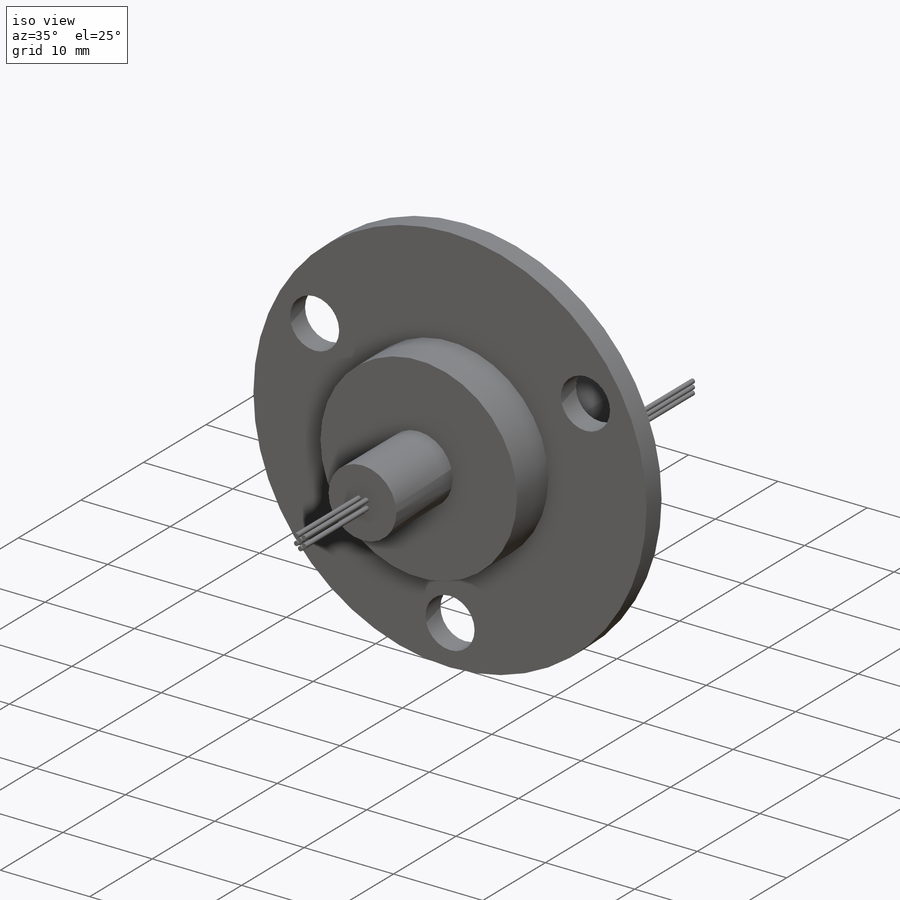
[diagram: iso view]
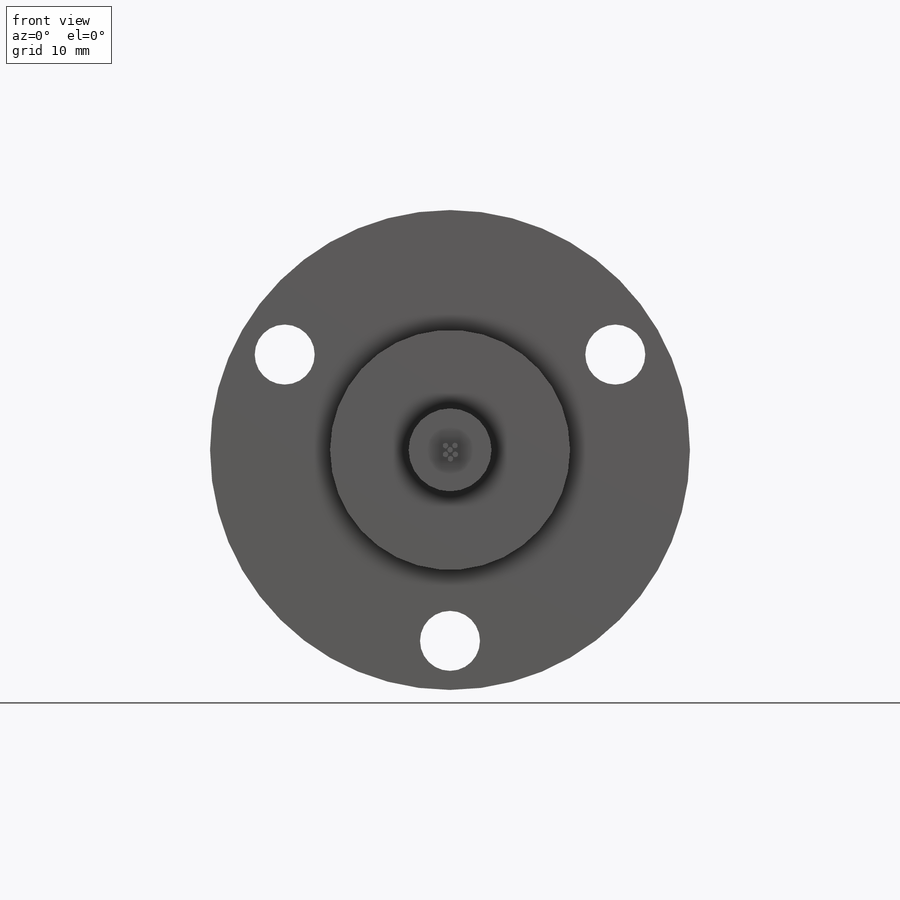
[diagram: front view]
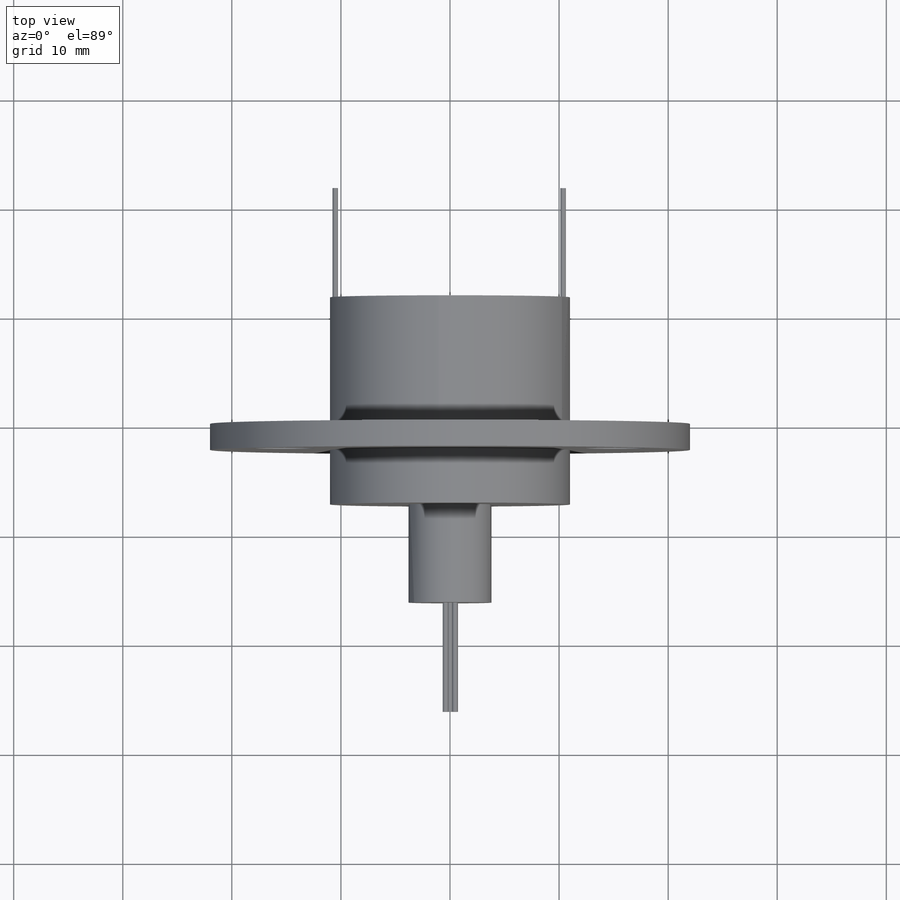
[diagram: top view]
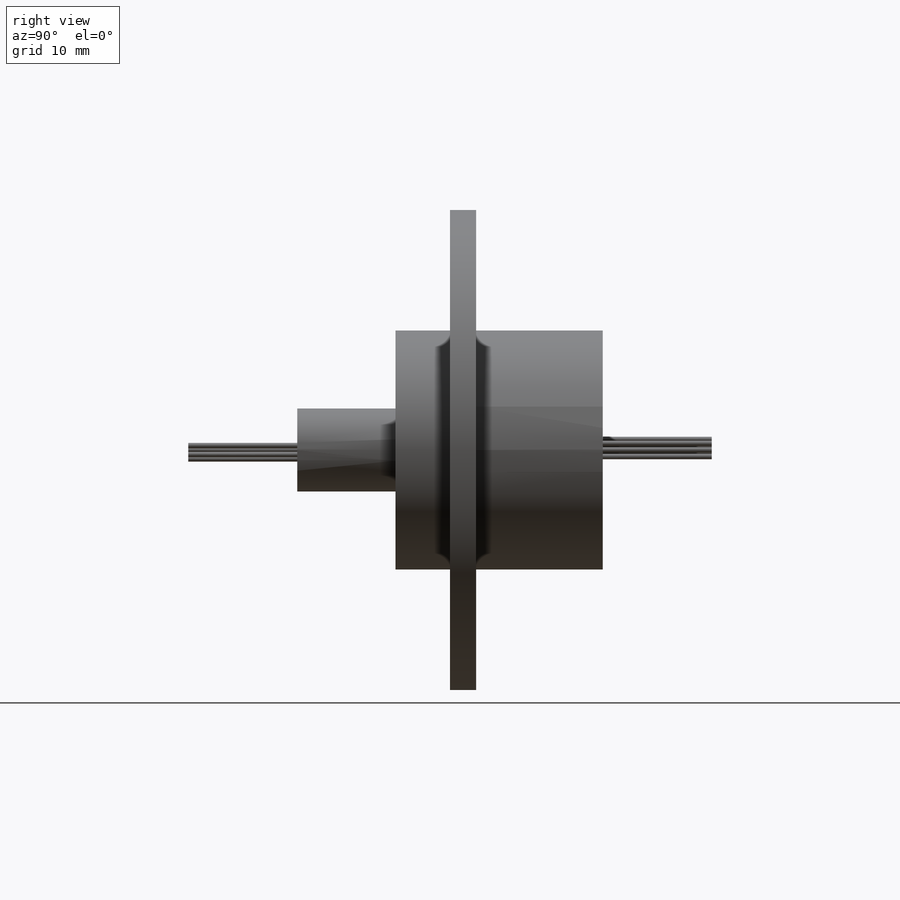
[diagram: right view]
SOLIDWORKS PART (.sldprt)
format: sldprt  version: not decoded by parser v0  size: 325,120 bytes
history: native  units: mm
features: sketch x18, revolve x12, plane x10, extrude x4, material x1, hole x1 (+12 scaffold rows collapsed)
feature tree (58):
  scaffold x12  (default folders/planes/origin — collapsed)
  material  "Material <not specified>"
  plane  "Plane1"
  sketch  "Sketch1"
  revolve  "Revolve1"  Angle=360deg
  sketch  "Sketch2"
  extrude  "Boss-Extrude1"  Depth=5mm
  sketch  "Sketch3"
  extrude  "Boss-Extrude2"  Depth=9mm
  sketch  "Sketch4"
  extrude  "Boss-Extrude3"  Depth=10mm
  sketch  "Sketch5"
  extrude  "Boss-Extrude4"  Depth=11.6mm
  plane  "Plane2"  Offset=0.816347mm
  sketch  "Sketch6"
  revolve  "Revolve2"  Angle=360deg
  plane  "Plane3"  Offset=0.416347mm
  sketch  "Sketch7"
  revolve  "Revolve3"  Angle=360deg
  plane  "Plane4"  Offset=0.383653mm
  sketch  "Sketch8"
  revolve  "Revolve4"  Angle=360deg
  plane  "Plane5"  Offset=0.400095mm
  sketch  "Sketch9"
  revolve  "Revolve5"  Angle=360deg
  plane  "Plane6"  Offset=0.222433mm
  sketch  "Sketch10"
  revolve  "Revolve6"  Angle=360deg
  plane  "Plane7"  Offset=0.377567mm
  sketch  "Sketch11"
  revolve  "Revolve7"  Angle=360deg
  plane  "Plane8"  Offset=0.6mm
  sketch  "Sketch12"
  revolve  "Revolve8"  Angle=360deg
  sketch  "Sketch13"
  revolve  "Revolve9"  Angle=360deg
  plane  "Plane9"  Offset=0.6mm
  sketch  "Sketch14"
  revolve  "Revolve10"  Angle=360deg
  plane  "Plane10"  Offset=0.968647mm
  sketch  "Sketch15"
  revolve  "Revolve11"  Angle=360deg
  sketch  "Sketch16"
  revolve  "Revolve12"  Angle=360deg
  hole  "Ø5.5 (5.5) Diameter Hole1"  Diameter=5.5mm Depth=26.4mm
  sketch  "Sketch18"
  sketch  "Sketch17"  dims[hole-wizard template sketch: 60 standard entries collapsed; hole parameters kept: c18.Thru Hole Depth=26.4mm]
decode coverage: 18 of 35 modeling features carry decoded parameters
note: ~ marks probable driven/reference dimensions
note: suppression state not decoded; provenance and decode notes live in map.json
